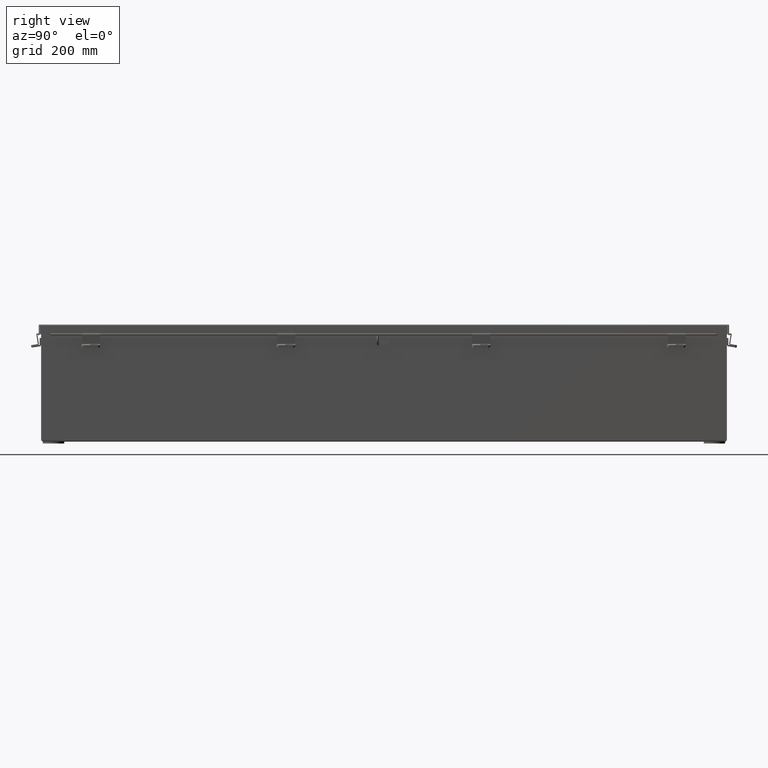
[diagram: clean part render]
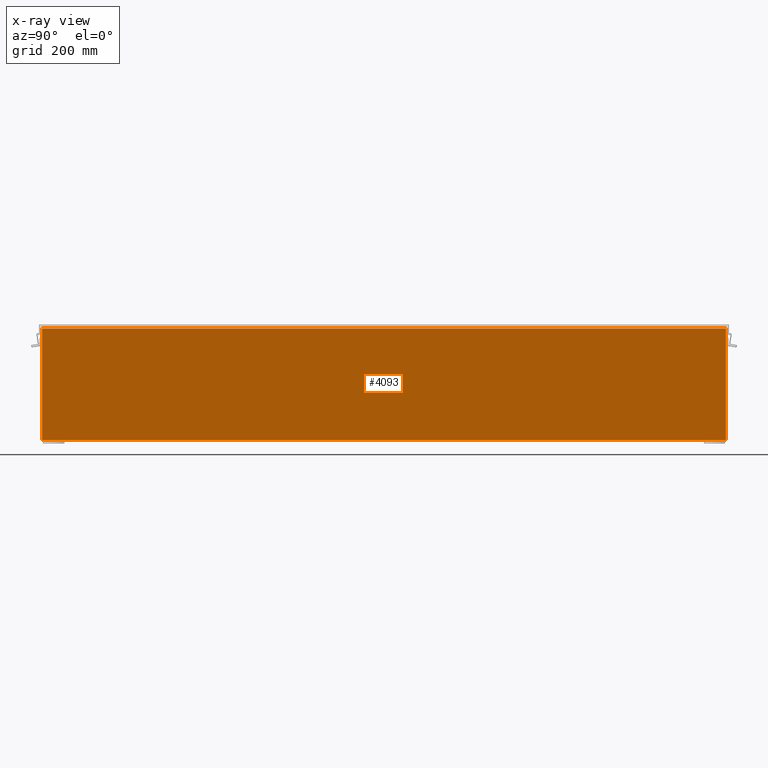
[diagram: x-ray — body ghosted, one internal face saturated and labeled with its STEP entity id]
A machine part, right view, then the same camera in x-ray: the body is ghosted and one INTERNAL B-rep face — a face not visible from any outside direction — is saturated and labeled: STEP entity #4093.
In plain terms, the highlighted planar face has unit normal (-1, 0, 0).
Its self-contained STEP definition (entity closure, byte-faithful):
#872 = DIRECTION ( 'NONE',  ( -1.589325349289957500E-031, 1.000000000000000000, -4.567295697298285000E-017 ) ) ;
#1121 = LINE ( 'NONE', #23478, #30247 ) ;
#1984 = CARTESIAN_POINT ( 'NONE',  ( 3.925299999999998200, -23.92529999999998600, 0.0000000000000000000 ) ) ;
#2566 = LINE ( 'NONE', #28252, #24241 ) ;
#3093 = CARTESIAN_POINT ( 'NONE',  ( 3.925299999999998200, -23.92529999999998200, 0.01300000000000096900 ) ) ;
#3613 = EDGE_CURVE ( 'NONE', #26198, #12720, #2566, .T. ) ;
#3730 = VECTOR ( 'NONE', #18328, 39.37007874015748100 ) ;
#4093 = ADVANCED_FACE ( 'NONE', ( #9118 ), #9029, .T. ) ;
#4982 = VERTEX_POINT ( 'NONE', #21436 ) ;
#5099 = CARTESIAN_POINT ( 'NONE',  ( 3.925300000000024400, -23.92529999999998600, 7.837599999999999200 ) ) ;
#5548 = EDGE_CURVE ( 'NONE', #26412, #4982, #1121, .T. ) ;
#7174 = ORIENTED_EDGE ( 'NONE', *, *, #5548, .F. ) ;
#7320 = EDGE_LOOP ( 'NONE', ( #13721, #32942, #16169, #7174 ) ) ;
#9029 = PLANE ( 'NONE',  #26464 ) ;
#9118 = FACE_OUTER_BOUND ( 'NONE', #7320, .T. ) ;
#11868 = DIRECTION ( 'NONE',  ( -1.000000000000000000, 0.0000000000000000000, 3.479795166820705900E-015 ) ) ;
#12651 = CARTESIAN_POINT ( 'NONE',  ( 3.925300000000025300, 23.92530000000000000, 7.850599999999999100 ) ) ;
#12720 = VERTEX_POINT ( 'NONE', #5099 ) ;
#13721 = ORIENTED_EDGE ( 'NONE', *, *, #20418, .F. ) ;
#16169 = ORIENTED_EDGE ( 'NONE', *, *, #26019, .F. ) ;
#18328 = DIRECTION ( 'NONE',  ( 3.479795166820706300E-015, -0.0000000000000000000, 1.000000000000000000 ) ) ;
#18882 = VECTOR ( 'NONE', #27436, 39.37007874015748100 ) ;
#20418 = EDGE_CURVE ( 'NONE', #12720, #26412, #33874, .T. ) ;
#20800 = DIRECTION ( 'NONE',  ( -0.0000000000000000000, -1.000000000000000000, -0.0000000000000000000 ) ) ;
#21436 = CARTESIAN_POINT ( 'NONE',  ( 3.925299999999998200, 23.92529999999998900, 0.01299999999999704200 ) ) ;
#23478 = CARTESIAN_POINT ( 'NONE',  ( 3.925299999999998200, -23.92529999999998600, 0.01300000000000011600 ) ) ;
#24241 = VECTOR ( 'NONE', #20800, 39.37007874015748100 ) ;
#26019 = EDGE_CURVE ( 'NONE', #4982, #26198, #33749, .T. ) ;
#26198 = VERTEX_POINT ( 'NONE', #27698 ) ;
#26412 = VERTEX_POINT ( 'NONE', #3093 ) ;
#26464 = AXIS2_PLACEMENT_3D ( 'NONE', #28773, #11868, #31578 ) ;
#27436 = DIRECTION ( 'NONE',  ( -3.479795166820706300E-015, -0.0000000000000000000, -1.000000000000000000 ) ) ;
#27698 = CARTESIAN_POINT ( 'NONE',  ( 3.925300000000025300, 23.92530000000000000, 7.837599999999999200 ) ) ;
#28252 = CARTESIAN_POINT ( 'NONE',  ( 3.925300000000024400, 23.92529999999999600, 7.837599999999999200 ) ) ;
#28773 = CARTESIAN_POINT ( 'NONE',  ( 3.925299999999998200, 0.0000000000000000000, -1.391535071772734100E-014 ) ) ;
#30247 = VECTOR ( 'NONE', #872, 39.37007874015748100 ) ;
#31578 = DIRECTION ( 'NONE',  ( 3.479795166820705900E-015, 0.0000000000000000000, 1.000000000000000000 ) ) ;
#32942 = ORIENTED_EDGE ( 'NONE', *, *, #3613, .F. ) ;
#33749 = LINE ( 'NONE', #12651, #3730 ) ;
#33874 = LINE ( 'NONE', #1984, #18882 ) ;